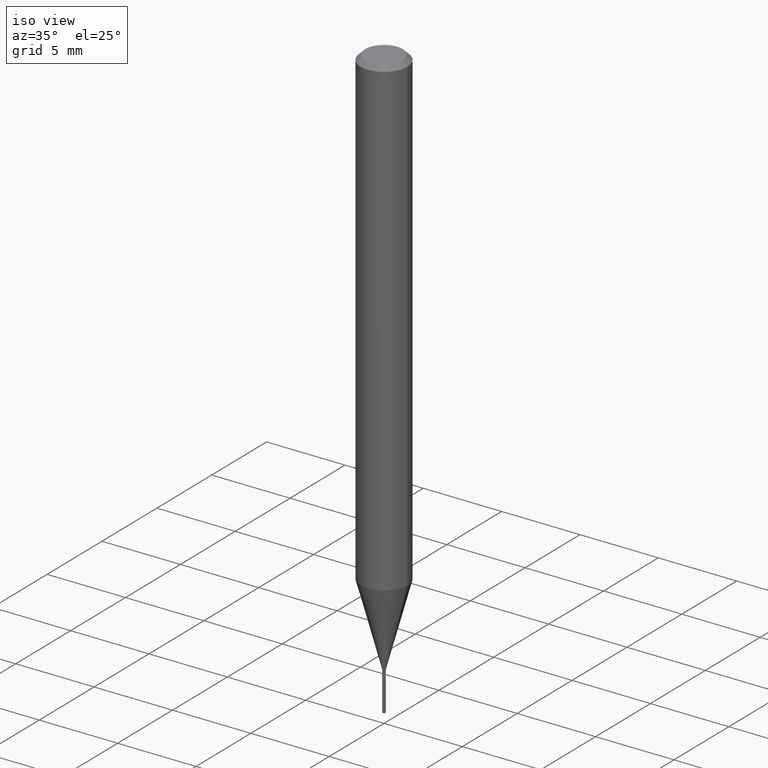
[diagram: clean part render]
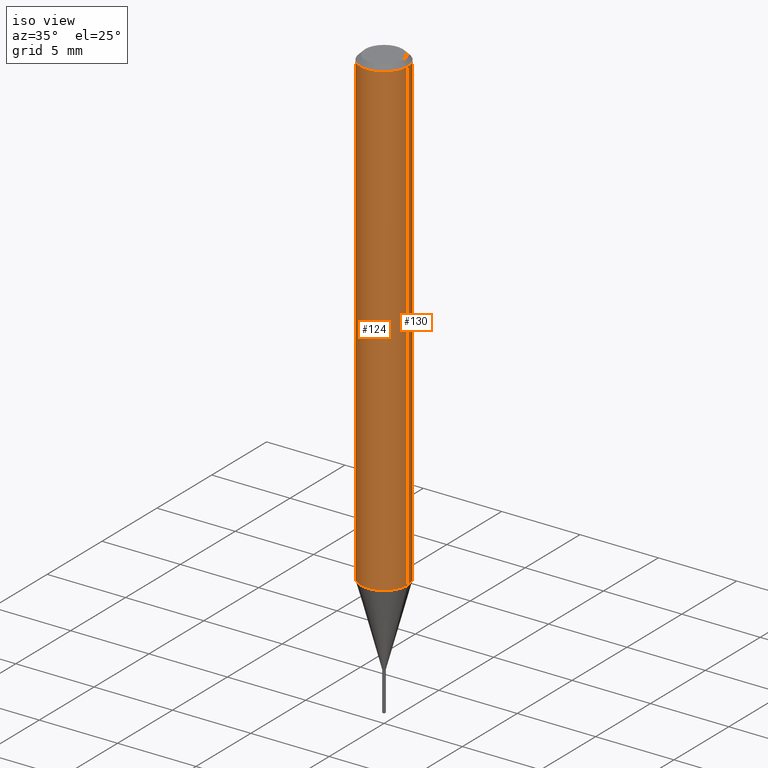
[diagram: same view with one multi-face feature highlighted, each face labeled with its STEP entity id]
A machine part, iso view. The highlighted faces form ONE feature: a constant-radius fillet chain: 2 tangent blend faces with common blend radius 1.4999 mm. The faces share edges in the B-rep.
Their STEP definitions:
[1] entity #124 (Cylinder):
#22 = EDGE_CURVE ( 'NONE', #431, #468, #372, .T. ) ;
#36 = CARTESIAN_POINT ( 'NONE',  ( 0.05905000000000014404, -4.565360374807322723E-15, -1.189471180179926924 ) ) ;
#57 = CARTESIAN_POINT ( 'NONE',  ( 2.908814666986231247E-29, -4.153016428689947803E-15, -1.189471180179926924 ) ) ;
#66 = AXIS2_PLACEMENT_3D ( 'NONE', #95, #437, #338 ) ;
#72 = CARTESIAN_POINT ( 'NONE',  ( -0.05905000000000014404, -3.733440943223607521E-15, -1.189471180179926924 ) ) ;
#86 = EDGE_CURVE ( 'NONE', #395, #431, #424, .T. ) ;
#87 = VERTEX_POINT ( 'NONE', #297 ) ;
#95 = CARTESIAN_POINT ( 'NONE',  ( 0.000000000000000000, 0.000000000000000000, 0.000000000000000000 ) ) ;
#101 = DIRECTION ( 'NONE',  ( -2.445468806185136597E-29, 3.491481338843145583E-15, 1.000000000000000000 ) ) ;
#123 = ORIENTED_EDGE ( 'NONE', *, *, #22, .T. ) ;
#124 = ADVANCED_FACE ( 'NONE', ( #251 ), #133, .T. ) ;
#127 = CIRCLE ( 'NONE', #317, 0.05904999999999999832 ) ;
#133 = CYLINDRICAL_SURFACE ( 'NONE', #66, 0.05905000000000006771 ) ;
#169 = EDGE_CURVE ( 'NONE', #87, #468, #127, .T. ) ;
#214 = DIRECTION ( 'NONE',  ( -2.445468806185136597E-29, 3.491481338843145583E-15, 1.000000000000000000 ) ) ;
#217 = CARTESIAN_POINT ( 'NONE',  ( 0.05904999999999999832, -4.535783407291118600E-16, -0.01181000000000007218 ) ) ;
#241 = EDGE_LOOP ( 'NONE', ( #283, #278, #123, #282 ) ) ;
#242 = AXIS2_PLACEMENT_3D ( 'NONE', #57, #214, #434 ) ;
#251 = FACE_OUTER_BOUND ( 'NONE', #241, .T. ) ;
#255 = DIRECTION ( 'NONE',  ( -2.445468806185136877E-29, 3.491481338843145188E-15, 1.000000000000000000 ) ) ;
#258 = LINE ( 'NONE', #444, #370 ) ;
#278 = ORIENTED_EDGE ( 'NONE', *, *, #86, .T. ) ;
#282 = ORIENTED_EDGE ( 'NONE', *, *, #169, .F. ) ;
#283 = ORIENTED_EDGE ( 'NONE', *, *, #455, .F. ) ;
#297 = CARTESIAN_POINT ( 'NONE',  ( -0.05904999999999999832, -1.677549926184502089E-15, -0.01181000000000007218 ) ) ;
#317 = AXIS2_PLACEMENT_3D ( 'NONE', #378, #101, #412 ) ;
#338 = DIRECTION ( 'NONE',  ( 1.000000000000000000, -6.982962677686266711E-15, 4.876176775795936353E-29 ) ) ;
#339 = DIRECTION ( 'NONE',  ( -2.445468806185136877E-29, 3.491481338843145188E-15, 1.000000000000000000 ) ) ;
#342 = VECTOR ( 'NONE', #255, 39.37007874015748143 ) ;
#370 = VECTOR ( 'NONE', #339, 39.37007874015748143 ) ;
#372 = LINE ( 'NONE', #442, #342 ) ;
#378 = CARTESIAN_POINT ( 'NONE',  ( 2.888098660104664204E-31, -4.123439461173780263E-17, -0.01181000000000007218 ) ) ;
#395 = VERTEX_POINT ( 'NONE', #72 ) ;
#412 = DIRECTION ( 'NONE',  ( 1.000000000000000000, -6.982962677686266711E-15, 0.000000000000000000 ) ) ;
#424 = CIRCLE ( 'NONE', #242, 0.05905000000000014404 ) ;
#431 = VERTEX_POINT ( 'NONE', #36 ) ;
#434 = DIRECTION ( 'NONE',  ( 1.000000000000000000, -6.982962677686272233E-15, 0.000000000000000000 ) ) ;
#437 = DIRECTION ( 'NONE',  ( -2.445468806185136597E-29, 3.491481338843145583E-15, 1.000000000000000000 ) ) ;
#442 = CARTESIAN_POINT ( 'NONE',  ( 0.05905000000000006771, -4.123439461173745257E-16, 2.879382386107503723E-30 ) ) ;
#444 = CARTESIAN_POINT ( 'NONE',  ( -0.05905000000000006771, 4.195754854663396409E-16, -2.904631170795525045E-30 ) ) ;
#455 = EDGE_CURVE ( 'NONE', #395, #87, #258, .T. ) ;
#468 = VERTEX_POINT ( 'NONE', #217 ) ;
[2] entity #130 (Cylinder):
#19 = ORIENTED_EDGE ( 'NONE', *, *, #289, .T. ) ;
#22 = EDGE_CURVE ( 'NONE', #431, #468, #372, .T. ) ;
#32 = DIRECTION ( 'NONE',  ( 1.000000000000000000, -6.982962677686266711E-15, 0.000000000000000000 ) ) ;
#36 = CARTESIAN_POINT ( 'NONE',  ( 0.05905000000000014404, -4.565360374807322723E-15, -1.189471180179926924 ) ) ;
#69 = DIRECTION ( 'NONE',  ( 1.000000000000000000, -6.982962677686272233E-15, 0.000000000000000000 ) ) ;
#72 = CARTESIAN_POINT ( 'NONE',  ( -0.05905000000000014404, -3.733440943223607521E-15, -1.189471180179926924 ) ) ;
#87 = VERTEX_POINT ( 'NONE', #297 ) ;
#91 = DIRECTION ( 'NONE',  ( 1.000000000000000000, -6.982962677686266711E-15, 4.876176775795936353E-29 ) ) ;
#93 = FACE_OUTER_BOUND ( 'NONE', #363, .T. ) ;
#98 = AXIS2_PLACEMENT_3D ( 'NONE', #145, #224, #32 ) ;
#130 = ADVANCED_FACE ( 'NONE', ( #93 ), #216, .T. ) ;
#145 = CARTESIAN_POINT ( 'NONE',  ( 2.888098660104664204E-31, -4.123439461173780263E-17, -0.01181000000000007218 ) ) ;
#176 = CARTESIAN_POINT ( 'NONE',  ( 0.000000000000000000, 0.000000000000000000, 0.000000000000000000 ) ) ;
#195 = EDGE_CURVE ( 'NONE', #468, #87, #476, .T. ) ;
#216 = CYLINDRICAL_SURFACE ( 'NONE', #329, 0.05905000000000006771 ) ;
#217 = CARTESIAN_POINT ( 'NONE',  ( 0.05904999999999999832, -4.535783407291118600E-16, -0.01181000000000007218 ) ) ;
#224 = DIRECTION ( 'NONE',  ( -2.445468806185136597E-29, 3.491481338843145583E-15, 1.000000000000000000 ) ) ;
#255 = DIRECTION ( 'NONE',  ( -2.445468806185136877E-29, 3.491481338843145188E-15, 1.000000000000000000 ) ) ;
#258 = LINE ( 'NONE', #444, #370 ) ;
#289 = EDGE_CURVE ( 'NONE', #431, #395, #300, .T. ) ;
#297 = CARTESIAN_POINT ( 'NONE',  ( -0.05904999999999999832, -1.677549926184502089E-15, -0.01181000000000007218 ) ) ;
#300 = CIRCLE ( 'NONE', #420, 0.05905000000000014404 ) ;
#329 = AXIS2_PLACEMENT_3D ( 'NONE', #176, #331, #91 ) ;
#331 = DIRECTION ( 'NONE',  ( -2.445468806185136597E-29, 3.491481338843145583E-15, 1.000000000000000000 ) ) ;
#339 = DIRECTION ( 'NONE',  ( -2.445468806185136877E-29, 3.491481338843145188E-15, 1.000000000000000000 ) ) ;
#342 = VECTOR ( 'NONE', #255, 39.37007874015748143 ) ;
#363 = EDGE_LOOP ( 'NONE', ( #19, #401, #366, #429 ) ) ;
#366 = ORIENTED_EDGE ( 'NONE', *, *, #195, .F. ) ;
#370 = VECTOR ( 'NONE', #339, 39.37007874015748143 ) ;
#372 = LINE ( 'NONE', #442, #342 ) ;
#395 = VERTEX_POINT ( 'NONE', #72 ) ;
#401 = ORIENTED_EDGE ( 'NONE', *, *, #455, .T. ) ;
#420 = AXIS2_PLACEMENT_3D ( 'NONE', #483, #422, #69 ) ;
#422 = DIRECTION ( 'NONE',  ( -2.445468806185136597E-29, 3.491481338843145583E-15, 1.000000000000000000 ) ) ;
#429 = ORIENTED_EDGE ( 'NONE', *, *, #22, .F. ) ;
#431 = VERTEX_POINT ( 'NONE', #36 ) ;
#442 = CARTESIAN_POINT ( 'NONE',  ( 0.05905000000000006771, -4.123439461173745257E-16, 2.879382386107503723E-30 ) ) ;
#444 = CARTESIAN_POINT ( 'NONE',  ( -0.05905000000000006771, 4.195754854663396409E-16, -2.904631170795525045E-30 ) ) ;
#455 = EDGE_CURVE ( 'NONE', #395, #87, #258, .T. ) ;
#468 = VERTEX_POINT ( 'NONE', #217 ) ;
#476 = CIRCLE ( 'NONE', #98, 0.05904999999999999832 ) ;
#483 = CARTESIAN_POINT ( 'NONE',  ( 2.908814666986231247E-29, -4.153016428689947803E-15, -1.189471180179926924 ) ) ;